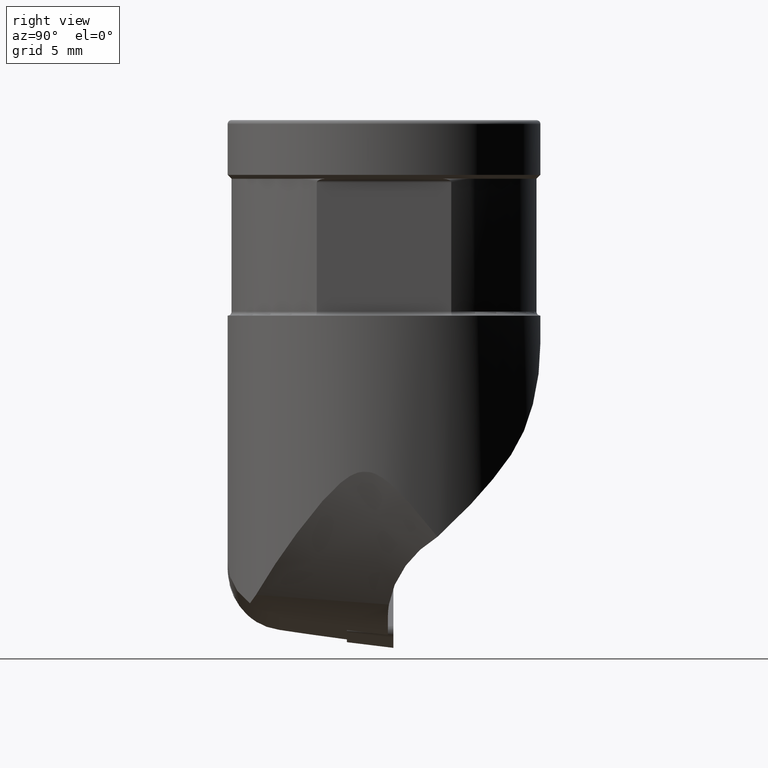
[diagram: clean part render]
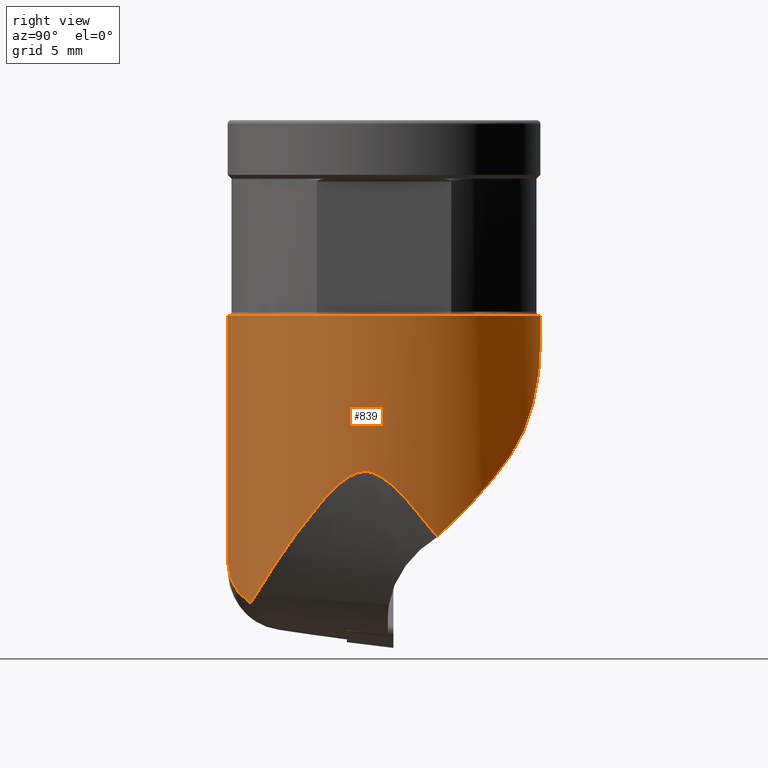
[diagram: same view with one face highlighted and labeled with its STEP entity id]
A machine part, right view. The second image highlights one B-rep face of the part: STEP entity #839.
In plain terms, the highlighted cylindrical surface (partial cylindrical patch) has radius 8 mm, axis along (0, 0, 1).
Its self-contained STEP definition (entity closure, byte-faithful):
#831=EDGE_CURVE('NONE',#835,#937,#2167,.F.);
#835=VERTEX_POINT('NONE',#2171);
#839=ADVANCED_FACE('NONE',(#2175),#2176,.T.);
#841=EDGE_CURVE('NONE',#1771,#1945,#2178,.T.);
#855=EDGE_CURVE('NONE',#1977,#1231,#2193,.T.);
#937=VERTEX_POINT('NONE',#2281);
#1083=VERTEX_POINT('NONE',#2444);
#1135=EDGE_CURVE('NONE',#1945,#1241,#2504,.T.);
#1221=EDGE_CURVE('NONE',#1565,#835,#2598,.F.);
#1231=VERTEX_POINT('NONE',#2609);
#1239=EDGE_CURVE('NONE',#1341,#1729,#2619,.F.);
#1241=VERTEX_POINT('NONE',#2621);
#1341=VERTEX_POINT('NONE',#2738);
#1565=VERTEX_POINT('NONE',#2984);
#1597=EDGE_CURVE('NONE',#937,#1231,#3019,.T.);
#1611=VERTEX_POINT('NONE',#3035);
#1635=EDGE_CURVE('NONE',#1611,#1341,#3059,.T.);
#1653=EDGE_CURVE('NONE',#1771,#1565,#3080,.T.);
#1661=EDGE_CURVE('NONE',#1729,#1083,#3090,.F.);
#1729=VERTEX_POINT('NONE',#3163);
#1771=VERTEX_POINT('NONE',#3208);
#1821=EDGE_CURVE('NONE',#1241,#1611,#3264,.T.);
#1887=EDGE_CURVE('NONE',#1977,#1083,#3337,.F.);
#1945=VERTEX_POINT('NONE',#3399);
#1977=VERTEX_POINT('NONE',#3435);
#2167=CIRCLE('',#3716,8.0);
#2171=CARTESIAN_POINT('',(7.2,-3.48711915483254,-10.0));
#2175=FACE_OUTER_BOUND('',#3727,.T.);
#2176=CYLINDRICAL_SURFACE('',#3728,8.0);
#2178=LINE('',#3731,#3732);
#2193=LINE('',#3751,#3752);
#2281=CARTESIAN_POINT('',(7.2,3.48711915483253,-10.0));
#2444=CARTESIAN_POINT('',(4.66368952654443,6.49999999999998,-17.1247129558007));
#2504=B_SPLINE_CURVE_WITH_KNOTS('',3,(#4844,#4845,#4846,#4847,#4848,#4849,#4850,#4851,#4852,#4853,#4854,#4855,#4856,#4857,#4858,#4859),.UNSPECIFIED.,.F.,.F.,(4,2,2,2,2,2,2,4),(0.0,0.00543840962434899,1.10192258210148,2.19840675457861,3.29489092705574,4.39137509953287,5.27103815314086,6.15070120674884),.UNSPECIFIED.);
#2598=CIRCLE('',#5083,8.0);
#2609=CARTESIAN_POINT('',(-2.44929359829471E-016,8.0,-10.0));
#2619=B_SPLINE_CURVE_WITH_KNOTS('',3,(#5109,#5110,#5111,#5112,#5113,#5114,#5115,#5116,#5117,#5118,#5119,#5120,#5121,#5122,#5123,#5124,#5125,#5126),.UNSPECIFIED.,.F.,.F.,(4,2,2,2,2,2,2,2,4),(0.0,0.970316964355293,1.94063392871059,2.91095089306588,3.88126785742117,4.85158482177646,5.82190178613176,6.79221875048705,7.76253571484234),.UNSPECIFIED.);
#2621=CARTESIAN_POINT('',(4.12246436583079,-6.85604022395255,-24.7184510008487));
#2738=CARTESIAN_POINT('',(7.51865657647359,2.73309408638825,-21.3184657919792));
#2984=CARTESIAN_POINT('',(-1.22464679914735E-015,-8.0,-10.0));
#3019=CIRCLE('',#5796,8.0);
#3035=CARTESIAN_POINT('',(4.59506505420348,-6.54869278158916,-24.2853886539691));
#3059=B_SPLINE_CURVE_WITH_KNOTS('',3,(#5908,#5909,#5910,#5911,#5912,#5913,#5914,#5915,#5916,#5917,#5918,#5919,#5920,#5921,#5922,#5923,#5924,#5925,#5926,#5927,#5928,#5929,#5930,#5931,#5932,#5933,#5934,#5935,#5936,#5937,#5938,#5939,#5940,#5941,#5942,#5943,#5944,#5945,#5946,#5947,#5948,#5949),.UNSPECIFIED.,.F.,.F.,(4,2,2,2,2,2,2,2,2,2,2,2,2,2,2,2,2,2,2,2,4),(0.0,1.82913219456188,3.65826438912377,5.48739658368565,7.31652877824753,8.62853256378269,9.94053634931785,10.5965382420854,11.252540134853,11.9085420276206,12.2365429740044,12.5645439203882,12.8458460734947,13.1271482266012,13.6897525328142,14.2523568390273,14.8149611452403,15.9401697576664,17.0653783700925,18.8951363168237,20.7248942635549),.UNSPECIFIED.);
#3080=LINE('',#5975,#5976);
#3090=ELLIPSE('',#5987,10.6666666666666,8.0);
#3163=CARTESIAN_POINT('',(7.33212111192933,3.20000000000003,-20.8653326499367));
#3208=CARTESIAN_POINT('',(-1.4328367550024E-015,-7.99999999999992,-11.7));
#3264=B_SPLINE_CURVE_WITH_KNOTS('',3,(#6339,#6340,#6341,#6342,#6343,#6344,#6345,#6346,#6347,#6348,#6349,#6350,#6351,#6352,#6353,#6354,#6355,#6356),.UNSPECIFIED.,.F.,.F.,(4,2,2,2,2,2,2,2,4),(3.45784741941766,3.96278581249521,4.46772420557276,4.9726625986503,5.47760099172785,5.95025025755467,6.4228995233815,6.89554878920832,7.36819805503515),.UNSPECIFIED.);
#3337=B_SPLINE_CURVE_WITH_KNOTS('',3,(#6504,#6505,#6506,#6507,#6508,#6509,#6510,#6511,#6512,#6513,#6514,#6515,#6516,#6517,#6518,#6519,#6520,#6521),.UNSPECIFIED.,.F.,.F.,(4,2,2,2,2,2,2,2,4),(1.07479834185558,2.14959668371115,3.22439502556673,4.29919336742231,5.94243413468008,7.58567490193785,9.22891566919563,10.8721564364534,10.8798779106352),.UNSPECIFIED.);
#3399=CARTESIAN_POINT('',(-6.03961325396085E-014,-8.0,-22.5743366014743));
#3435=CARTESIAN_POINT('',(-1.77635683940025E-015,8.0,-11.4321305522334));
#3716=AXIS2_PLACEMENT_3D('',#6887,#6888,#6889);
#3727=EDGE_LOOP('',(#6895,#6896,#6897,#6898,#6899,#6900,#6901,#6902,#6903,#6904,#6905,#6906));
#3728=AXIS2_PLACEMENT_3D('',#6907,#6908,#6909);
#3731=CARTESIAN_POINT('',(1.26060226389638E-016,-7.99999999999992,1.02935986504358));
#3732=VECTOR('',#6910,1.0);
#3751=CARTESIAN_POINT('',(1.10577766570752E-015,8.0,1.02935986504359));
#3752=VECTOR('',#6923,1000.0);
#4844=CARTESIAN_POINT('',(-6.03961325396085E-014,-8.0,-22.5743366014743));
#4845=CARTESIAN_POINT('',(0.00158113876505892,-8.0,-22.5752233120679));
#4846=CARTESIAN_POINT('',(0.00347850521835788,-7.99999940000009,-22.5762873647267));
#4847=CARTESIAN_POINT('',(0.323846495093845,-7.9997967814685,-22.7559513000878));
#4848=CARTESIAN_POINT('',(0.657072413393351,-7.98026894228553,-22.9428790668704));
#4849=CARTESIAN_POINT('',(1.33422243586784,-7.89533324545229,-23.318544668663));
#4850=CARTESIAN_POINT('',(1.67816111441086,-7.82992605650703,-23.5072563834734));
#4851=CARTESIAN_POINT('',(2.35955161159423,-7.65222095036088,-23.8716109552062));
#4852=CARTESIAN_POINT('',(2.69719247567382,-7.53986271783892,-24.0473174584531));
#4853=CARTESIAN_POINT('',(3.35021332907783,-7.27326939635814,-24.3717646166426));
#4854=CARTESIAN_POINT('',(3.66560667982245,-7.11900038040641,-24.5204504981724));
#4855=CARTESIAN_POINT('',(4.20076953364832,-6.81386342755235,-24.7536855484626));
#4856=CARTESIAN_POINT('',(4.44546973969614,-6.65783682645033,-24.8531890868457));
#4857=CARTESIAN_POINT('',(4.92896929040698,-6.30826871341318,-25.0269227111907));
#4858=CARTESIAN_POINT('',(5.16776360371569,-6.11470095565609,-25.1011139871639));
#4859=CARTESIAN_POINT('',(5.39574253108054,-5.90643399508439,-25.1552685870054));
#5083=AXIS2_PLACEMENT_3D('',#7410,#7411,#7412);
#5109=CARTESIAN_POINT('',(5.01917324890718,6.22959869473585,-18.6018326499367));
#5110=CARTESIAN_POINT('',(5.24919381635586,6.04427165596328,-18.7335794005055));
#5111=CARTESIAN_POINT('',(5.47132234995954,5.84411006201449,-18.8706310850397));
#5112=CARTESIAN_POINT('',(5.89136633179677,5.42040528137632,-19.1596471053692));
#5113=CARTESIAN_POINT('',(6.08926917779716,5.19687679199566,-19.3116513016581));
#5114=CARTESIAN_POINT('',(6.45488360020239,4.73510342758833,-19.6347989433196));
#5115=CARTESIAN_POINT('',(6.62264336803106,4.49681340927521,-19.8060211417898));
#5116=CARTESIAN_POINT('',(6.92498511604626,4.01563409173275,-20.1708385142391));
#5117=CARTESIAN_POINT('',(7.05957566135981,3.77276955801976,-20.3644592536777));
#5118=CARTESIAN_POINT('',(7.29558696148909,3.29329767004718,-20.7754444762361));
#5119=CARTESIAN_POINT('',(7.39731084518938,3.05612643692294,-20.993318629484));
#5120=CARTESIAN_POINT('',(7.57058161243674,2.5973853369163,-21.4534622320089));
#5121=CARTESIAN_POINT('',(7.64215921658183,2.37583717319328,-21.6957417493831));
#5122=CARTESIAN_POINT('',(7.75984106052847,1.95756650796709,-22.2022119300077));
#5123=CARTESIAN_POINT('',(7.80599915994856,1.76079848499077,-22.4664774750946));
#5124=CARTESIAN_POINT('',(7.87886779588618,1.39909844018945,-23.0125940070368));
#5125=CARTESIAN_POINT('',(7.90561591739726,1.23417212086913,-23.2944437550855));
#5126=CARTESIAN_POINT('',(7.92575134101564,1.08741237825803,-23.5819657919792));
#5796=AXIS2_PLACEMENT_3D('',#7945,#7946,#7947);
#5908=CARTESIAN_POINT('',(2.30150625884308,-7.66179280198219,-26.5488886539691));
#5909=CARTESIAN_POINT('',(2.76319357520223,-7.52310773496313,-26.1755812066413));
#5910=CARTESIAN_POINT('',(3.21487583590828,-7.34131770850076,-25.7683560605654));
#5911=CARTESIAN_POINT('',(4.06956026794561,-6.90427777392362,-24.9046807265796));
#5912=CARTESIAN_POINT('',(4.47263129436066,-6.64916726818809,-24.4482281431009));
#5913=CARTESIAN_POINT('',(5.21227826999491,-6.08670830949822,-23.5111643933215));
#5914=CARTESIAN_POINT('',(5.54913581156623,-5.77929536933569,-23.0302687393551));
#5915=CARTESIAN_POINT('',(6.1488342817311,-5.13663316177522,-22.0738095820757));
#5916=CARTESIAN_POINT('',(6.41172432036472,-4.80147816204433,-21.5982135337644));
#5917=CARTESIAN_POINT('',(6.80034858236086,-4.22372378096048,-20.8162448807555));
#5918=CARTESIAN_POINT('',(6.95471260064204,-3.96528899924056,-20.4776536037513));
#5919=CARTESIAN_POINT('',(7.23435412826161,-3.42865347840418,-19.810290818584));
#5920=CARTESIAN_POINT('',(7.35965979609993,-3.15077453676967,-19.481272409709));
#5921=CARTESIAN_POINT('',(7.5227236724317,-2.72610009071417,-19.0264030949601));
#5922=CARTESIAN_POINT('',(7.5725639175186,-2.58437129576852,-18.8825456982933));
#5923=CARTESIAN_POINT('',(7.66450185253724,-2.29741390218853,-18.614520508048));
#5924=CARTESIAN_POINT('',(7.7065996309675,-2.15230379713479,-18.4902259094383));
#5925=CARTESIAN_POINT('',(7.78428368840668,-1.85176088585364,-18.2693867732841));
#5926=CARTESIAN_POINT('',(7.81959309030105,-1.69800698657773,-18.1731686595464));
#5927=CARTESIAN_POINT('',(7.86867041596464,-1.44614705644159,-18.063447115929));
#5928=CARTESIAN_POINT('',(7.88434473179016,-1.35869800963571,-18.0328497157091));
#5929=CARTESIAN_POINT('',(7.91427340287428,-1.17184838097878,-17.9896371920156));
#5930=CARTESIAN_POINT('',(7.92854160555401,-1.07246343051481,-17.9769640914932));
#5931=CARTESIAN_POINT('',(7.95300973522131,-0.870876281654062,-17.9807006295748));
#5932=CARTESIAN_POINT('',(7.96195303787897,-0.783740524066596,-17.9930555011362));
#5933=CARTESIAN_POINT('',(7.97655240072543,-0.617703154280107,-18.0320404162606));
#5934=CARTESIAN_POINT('',(7.98220064014771,-0.53880578439963,-18.0586914533705));
#5935=CARTESIAN_POINT('',(7.99545403311356,-0.309952253340664,-18.1538906477497));
#5936=CARTESIAN_POINT('',(7.99944383375937,-0.167870071191905,-18.2371303496314));
#5937=CARTESIAN_POINT('',(8.00045099648688,0.10985782105176,-18.4284499405503));
#5938=CARTESIAN_POINT('',(7.99737504733029,0.244513233750087,-18.5363785866463));
#5939=CARTESIAN_POINT('',(7.98477717440504,0.511006694034915,-18.769429963158));
#5940=CARTESIAN_POINT('',(7.97523274913214,0.64276133979828,-18.8946468294193));
#5941=CARTESIAN_POINT('',(7.93684134593753,1.03752956496224,-19.2903475818787));
#5942=CARTESIAN_POINT('',(7.89839763091034,1.2966841937292,-19.5771017926462));
#5943=CARTESIAN_POINT('',(7.79886307678125,1.80105793155521,-20.1603709376062));
#5944=CARTESIAN_POINT('',(7.73770491557665,2.04601879497878,-20.457097647827));
#5945=CARTESIAN_POINT('',(7.5572383409278,2.65372124491636,-21.2109760122943));
#5946=CARTESIAN_POINT('',(7.41370234050744,3.03491546540901,-21.7030513007667));
#5947=CARTESIAN_POINT('',(7.05821323635024,3.78884153028654,-22.7035980002037));
#5948=CARTESIAN_POINT('',(6.84620295128328,4.16143312202833,-23.2121547697297));
#5949=CARTESIAN_POINT('',(6.60125458789563,4.51922978678743,-23.7142381957429));
#5975=CARTESIAN_POINT('',(1.26060226389638E-016,-8.0,1.02935986504359));
#5976=VECTOR('',#8011,1000.0);
#5987=AXIS2_PLACEMENT_3D('',#8029,#8030,#8031);
#6339=CARTESIAN_POINT('',(2.64299213127119,-7.55080079157427,-25.1457070516732));
#6340=CARTESIAN_POINT('',(2.80172363893783,-7.49524031033155,-25.1525290209662));
#6341=CARTESIAN_POINT('',(2.96439054042796,-7.43255550982909,-25.143602191129));
#6342=CARTESIAN_POINT('',(3.28588368390535,-7.29612644480061,-25.0926978329306));
#6343=CARTESIAN_POINT('',(3.44471773414109,-7.22238526176063,-25.0507613685046));
#6344=CARTESIAN_POINT('',(3.7485722157757,-7.06945085878126,-24.9367844656164));
#6345=CARTESIAN_POINT('',(3.89378173977587,-6.99018766000794,-24.8646987658744));
#6346=CARTESIAN_POINT('',(4.16291772848455,-6.83332830656627,-24.696264296321));
#6347=CARTESIAN_POINT('',(4.28685404368442,-6.75576674759335,-24.5998990503966));
#6348=CARTESIAN_POINT('',(4.50082016033041,-6.61497944147957,-24.3984447409576));
#6349=CARTESIAN_POINT('',(4.60002987018319,-6.5461297264957,-24.2871634542042));
#6350=CARTESIAN_POINT('',(4.77819661897735,-6.41723665411731,-24.0410654143753));
#6351=CARTESIAN_POINT('',(4.85717919581398,-6.35724370786301,-23.9062407505136));
#6352=CARTESIAN_POINT('',(4.9865998162551,-6.25624172486261,-23.6199029157611));
#6353=CARTESIAN_POINT('',(5.03715504964287,-6.21522139262052,-23.4680548789045));
#6354=CARTESIAN_POINT('',(5.1047231923564,-6.15984651525222,-23.1566593482952));
#6355=CARTESIAN_POINT('',(5.1217001112041,-6.14558280156503,-22.9970879008921));
#6356=CARTESIAN_POINT('',(5.1217001112041,-6.14558280156503,-22.8395381456165));
#6504=CARTESIAN_POINT('',(6.31781772265352,4.90766535364067,-18.542184772265));
#6505=CARTESIAN_POINT('',(6.1106132740805,5.17440723883352,-18.4320396139366));
#6506=CARTESIAN_POINT('',(5.89158696301378,5.42142026320247,-18.2738685365569));
#6507=CARTESIAN_POINT('',(5.4392982673378,5.87508538662578,-17.8968046674008));
#6508=CARTESIAN_POINT('',(5.20653109911469,6.08109167071605,-17.6779707077555));
#6509=CARTESIAN_POINT('',(4.74283886519779,6.44927294142659,-17.2125206404235));
#6510=CARTESIAN_POINT('',(4.51194001055683,6.61143179787125,-16.965865662669));
#6511=CARTESIAN_POINT('',(3.952782221515,6.96677409900503,-16.3478575413201));
#6512=CARTESIAN_POINT('',(3.60088676974271,7.15458732033461,-15.9388236290614));
#6513=CARTESIAN_POINT('',(2.88216956629026,7.47312543811888,-15.0781596222909));
#6514=CARTESIAN_POINT('',(2.5153580444984,7.60382790975137,-14.6265126857427));
#6515=CARTESIAN_POINT('',(1.7811949769404,7.80849288025575,-13.7087454114762));
#6516=CARTESIAN_POINT('',(1.41378482413412,7.88245106980658,-13.2425441950134));
#6517=CARTESIAN_POINT('',(0.693966133190303,7.97810963597864,-12.3235868467372));
#6518=CARTESIAN_POINT('',(0.341548705772267,7.99978558560639,-11.8708351353605));
#6519=CARTESIAN_POINT('',(0.0034785051187834,7.99999940000015,-11.4365985426447));
#6520=CARTESIAN_POINT('',(0.00158113870370249,8.0,-11.434161456989));
#6521=CARTESIAN_POINT('',(-1.77635683940025E-015,8.0,-11.4321305522334));
#6887=CARTESIAN_POINT('',(-1.22464679914735E-015,0.0,-10.0));
#6888=DIRECTION('',(-1.22464679914735E-016,-0.0,-1.0));
#6889=DIRECTION('',(0.0,-1.0,0.0));
#6895=ORIENTED_EDGE('',*,*,#1887,.F.);
#6896=ORIENTED_EDGE('',*,*,#855,.T.);
#6897=ORIENTED_EDGE('',*,*,#1597,.F.);
#6898=ORIENTED_EDGE('',*,*,#831,.F.);
#6899=ORIENTED_EDGE('',*,*,#1221,.F.);
#6900=ORIENTED_EDGE('',*,*,#1653,.F.);
#6901=ORIENTED_EDGE('',*,*,#841,.T.);
#6902=ORIENTED_EDGE('',*,*,#1135,.T.);
#6903=ORIENTED_EDGE('',*,*,#1821,.T.);
#6904=ORIENTED_EDGE('',*,*,#1635,.T.);
#6905=ORIENTED_EDGE('',*,*,#1239,.T.);
#6906=ORIENTED_EDGE('',*,*,#1661,.T.);
#6907=CARTESIAN_POINT('',(1.26060226389638E-016,0.0,1.02935986504359));
#6908=DIRECTION('',(1.22464679914735E-016,0.0,1.0));
#6909=DIRECTION('',(0.0,-1.0,0.0));
#6910=DIRECTION('',(-1.22464679914735E-016,0.0,-1.0));
#6923=DIRECTION('',(1.22464679914735E-016,-0.0,1.0));
#7410=CARTESIAN_POINT('',(-1.22464679914735E-015,0.0,-10.0));
#7411=DIRECTION('',(-1.22464679914735E-016,-0.0,-1.0));
#7412=DIRECTION('',(0.0,-1.0,0.0));
#7945=CARTESIAN_POINT('',(-1.22464679914735E-015,0.0,-10.0));
#7946=DIRECTION('',(1.22464679914735E-016,0.0,1.0));
#7947=DIRECTION('',(0.0,-1.0,0.0));
#8011=DIRECTION('',(1.22464679914735E-016,-0.0,1.0));
#8029=CARTESIAN_POINT('',(-2.29810652819744E-015,0.0,-18.7654638855666));
#8030=DIRECTION('',(-0.433012701892222,0.499999999999995,-0.750000000000002));
#8031=DIRECTION('',(0.490990253030988,-0.566946709513839,-0.661437827766146));